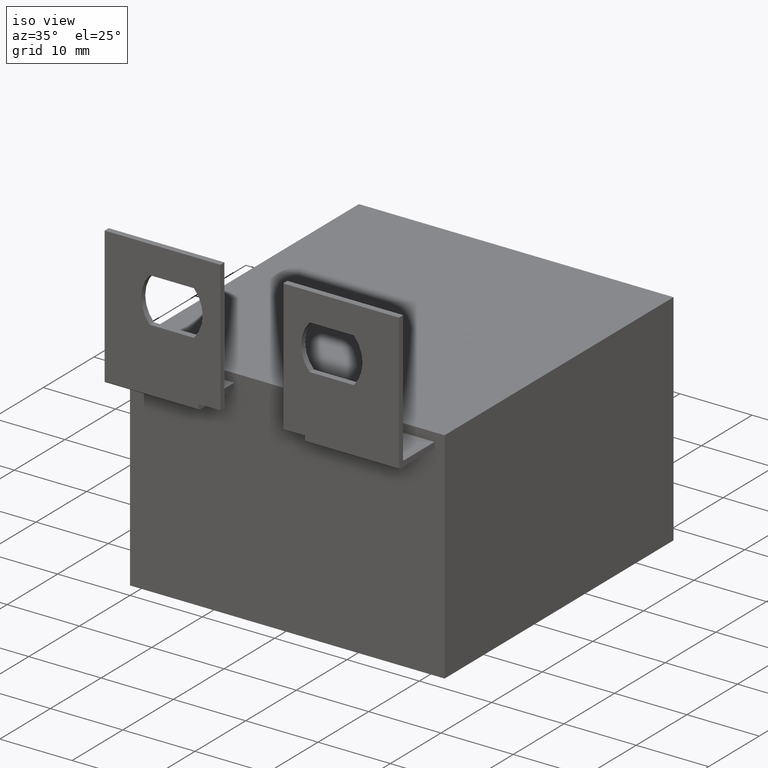
[diagram: clean part render]
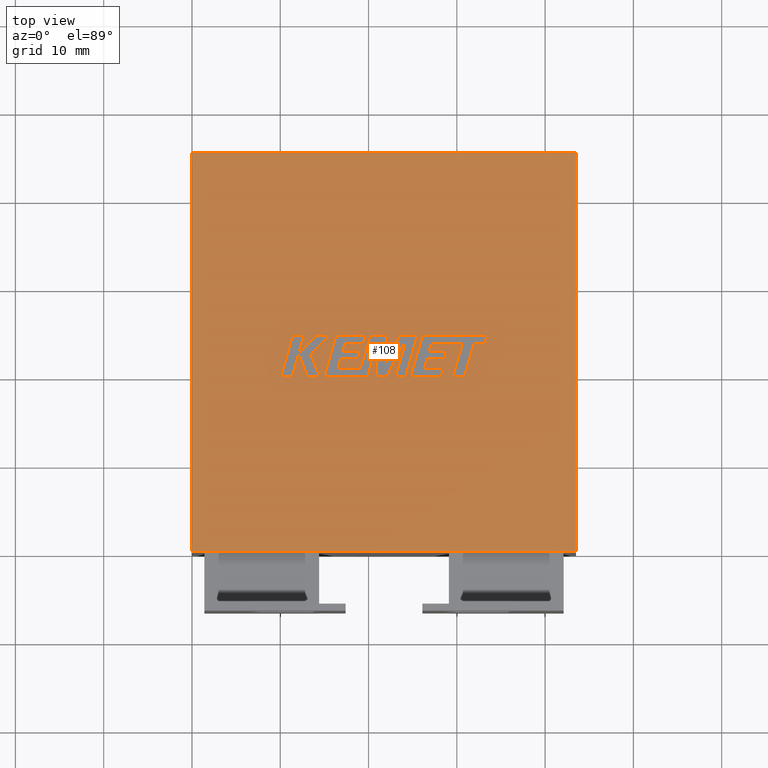
[diagram: tour spotlight — one face highlighted and labeled with its STEP entity id]
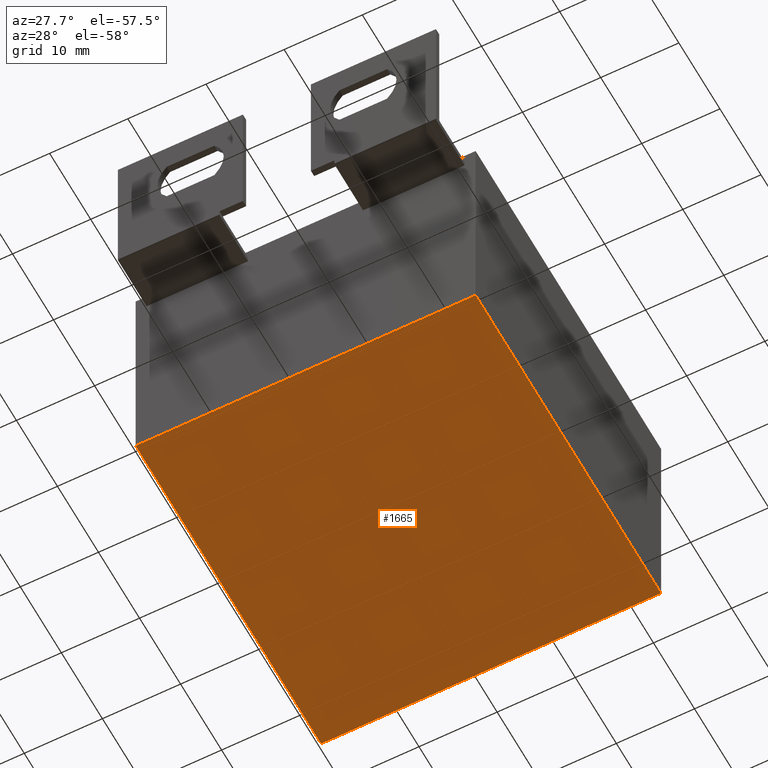
[diagram: tour spotlight — one face highlighted and labeled with its STEP entity id]
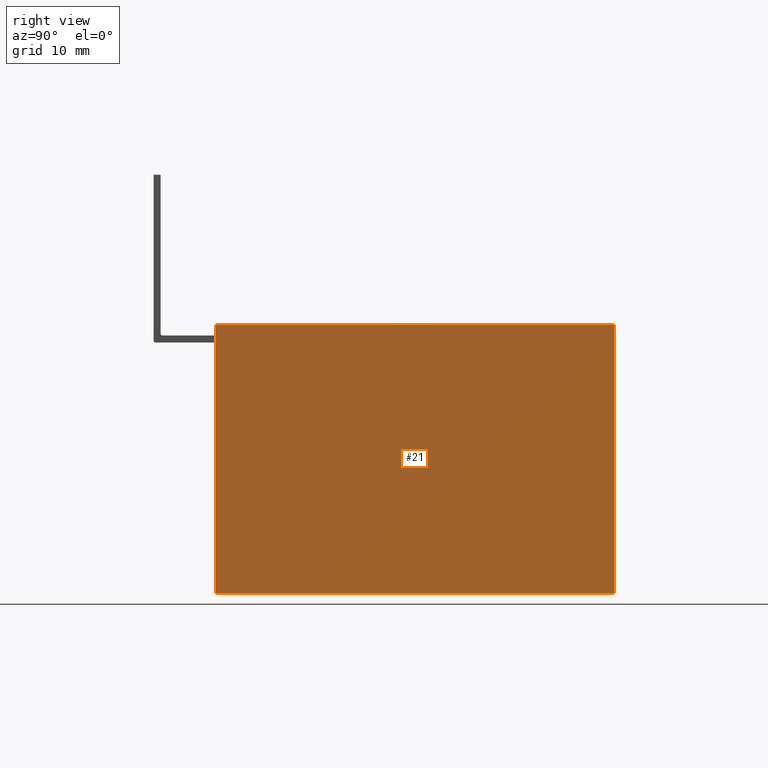
[diagram: tour spotlight — one face highlighted and labeled with its STEP entity id]
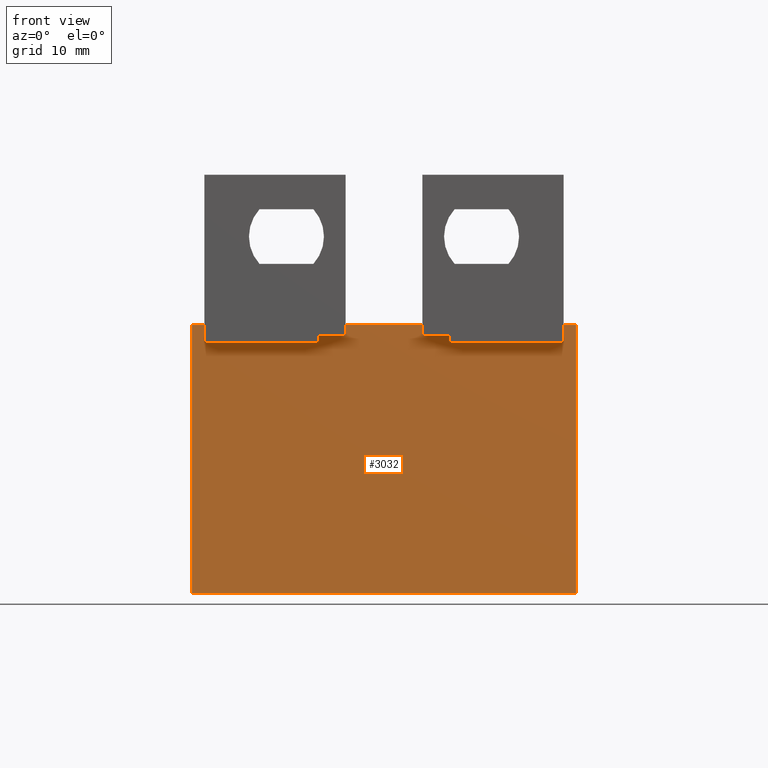
[diagram: tour spotlight — one face highlighted and labeled with its STEP entity id]
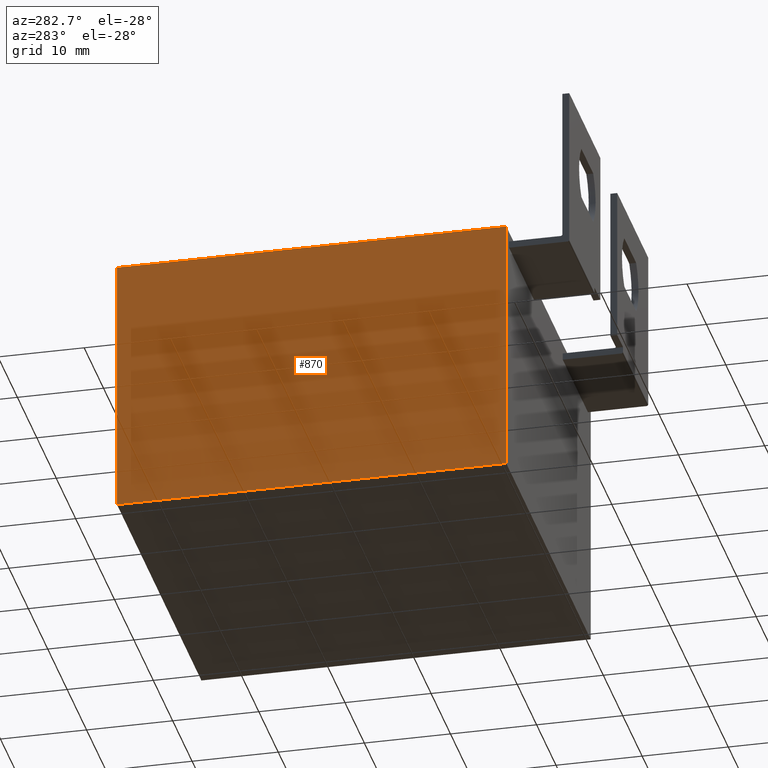
[diagram: tour spotlight — one face highlighted and labeled with its STEP entity id]
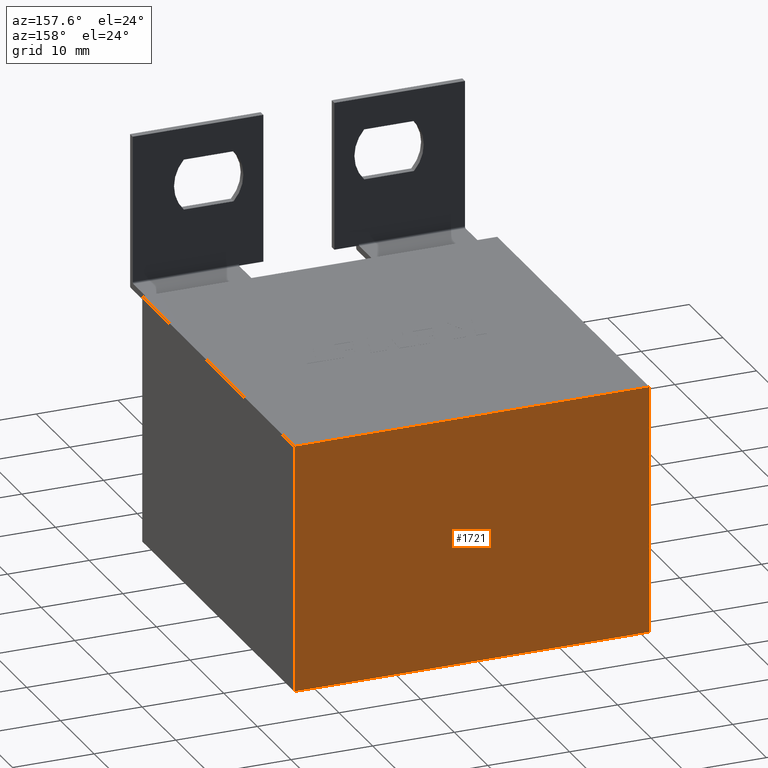
[diagram: tour spotlight — one face highlighted and labeled with its STEP entity id]
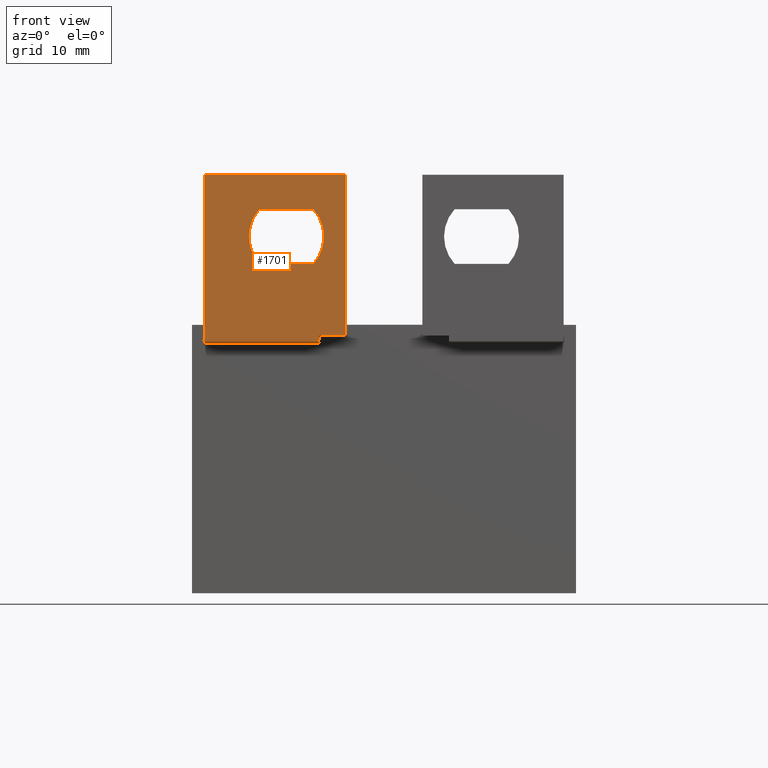
[diagram: tour spotlight — one face highlighted and labeled with its STEP entity id]
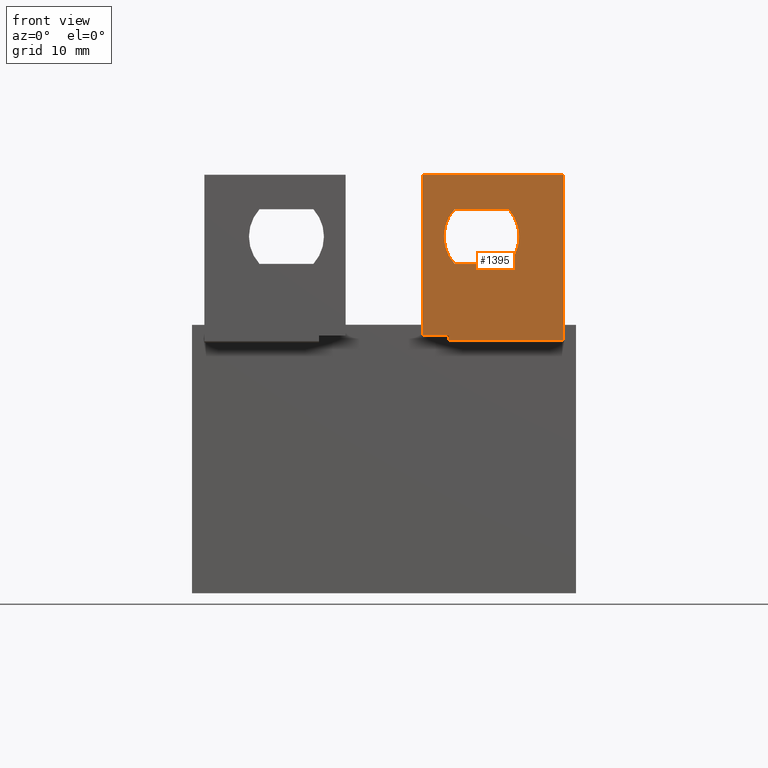
[diagram: tour spotlight — one face highlighted and labeled with its STEP entity id]
A machine part: a face-by-face anatomy tour. The part has 93 B-rep faces; the first image is the clean iso view, then the 8 largest visible faces are spotlighted one at a time (largest first), each with its STEP entity span.

Face 1 — top view, entity #108. In plain terms, the highlighted planar face has unit normal (0, 0, -1).
Definition (entity closure, byte-faithful):
#11 = VECTOR ( 'NONE', #2795, 1000.000000000000000 ) ;
#38 = DIRECTION ( 'NONE',  ( -1.000000000000000000, -0.0000000000000000000, -0.0000000000000000000 ) ) ;
#108 = ADVANCED_FACE ( 'NONE', ( #2443 ), #671, .F. ) ;
#158 = VERTEX_POINT ( 'NONE', #2806 ) ;
#172 = CARTESIAN_POINT ( 'NONE',  ( 0.0000000000000000000, 0.0000000000000000000, 30.39999999999999900 ) ) ;
#203 = EDGE_CURVE ( 'NONE', #158, #2235, #1085, .T. ) ;
#234 = EDGE_CURVE ( 'NONE', #2235, #873, #571, .T. ) ;
#571 = LINE ( 'NONE', #172, #3344 ) ;
#671 = PLANE ( 'NONE',  #2219 ) ;
#873 = VERTEX_POINT ( 'NONE', #2827 ) ;
#928 = CARTESIAN_POINT ( 'NONE',  ( 0.0000000000000000000, 0.0000000000000000000, 30.39999999999999900 ) ) ;
#976 = CARTESIAN_POINT ( 'NONE',  ( 43.50000000000000000, 0.0000000000000000000, 30.39999999999999900 ) ) ;
#1005 = ORIENTED_EDGE ( 'NONE', *, *, #1647, .T. ) ;
#1085 = LINE ( 'NONE', #928, #11 ) ;
#1181 = VECTOR ( 'NONE', #1843, 1000.000000000000000 ) ;
#1362 = CARTESIAN_POINT ( 'NONE',  ( 0.0000000000000000000, 45.20000000000000300, 30.39999999999999900 ) ) ;
#1489 = DIRECTION ( 'NONE',  ( 0.0000000000000000000, 0.0000000000000000000, -1.000000000000000000 ) ) ;
#1647 = EDGE_CURVE ( 'NONE', #2102, #158, #3310, .T. ) ;
#1722 = DIRECTION ( 'NONE',  ( -1.000000000000000000, 0.0000000000000000000, -0.0000000000000000000 ) ) ;
#1806 = ORIENTED_EDGE ( 'NONE', *, *, #234, .T. ) ;
#1838 = LINE ( 'NONE', #976, #1181 ) ;
#1843 = DIRECTION ( 'NONE',  ( 0.0000000000000000000, 1.000000000000000000, 0.0000000000000000000 ) ) ;
#1873 = EDGE_CURVE ( 'NONE', #873, #2102, #1838, .T. ) ;
#1966 = CARTESIAN_POINT ( 'NONE',  ( 0.0000000000000000000, 0.0000000000000000000, 30.39999999999999900 ) ) ;
#1977 = VECTOR ( 'NONE', #38, 1000.000000000000000 ) ;
#2102 = VERTEX_POINT ( 'NONE', #2980 ) ;
#2122 = EDGE_LOOP ( 'NONE', ( #2144, #1806, #2698, #1005 ) ) ;
#2144 = ORIENTED_EDGE ( 'NONE', *, *, #203, .T. ) ;
#2219 = AXIS2_PLACEMENT_3D ( 'NONE', #2226, #1489, #1722 ) ;
#2226 = CARTESIAN_POINT ( 'NONE',  ( 0.0000000000000000000, 0.0000000000000000000, 30.39999999999999900 ) ) ;
#2235 = VERTEX_POINT ( 'NONE', #1966 ) ;
#2443 = FACE_OUTER_BOUND ( 'NONE', #2122, .T. ) ;
#2698 = ORIENTED_EDGE ( 'NONE', *, *, #1873, .T. ) ;
#2795 = DIRECTION ( 'NONE',  ( -0.0000000000000000000, -1.000000000000000000, -0.0000000000000000000 ) ) ;
#2806 = CARTESIAN_POINT ( 'NONE',  ( 0.0000000000000000000, 45.20000000000000300, 30.39999999999999900 ) ) ;
#2827 = CARTESIAN_POINT ( 'NONE',  ( 43.50000000000000000, 0.0000000000000000000, 30.39999999999999900 ) ) ;
#2980 = CARTESIAN_POINT ( 'NONE',  ( 43.50000000000000000, 45.20000000000000300, 30.39999999999999900 ) ) ;
#3310 = LINE ( 'NONE', #1362, #1977 ) ;
#3344 = VECTOR ( 'NONE', #3399, 1000.000000000000000 ) ;
#3399 = DIRECTION ( 'NONE',  ( 1.000000000000000000, 0.0000000000000000000, 0.0000000000000000000 ) ) ;

Face 2 — auxiliary view, entity #1665. In plain terms, the highlighted planar face has unit normal (0, 0, -1).
Definition (entity closure, byte-faithful):
#15 = VECTOR ( 'NONE', #2313, 1000.000000000000000 ) ;
#124 = VERTEX_POINT ( 'NONE', #2023 ) ;
#137 = CARTESIAN_POINT ( 'NONE',  ( 43.50000000000000000, 45.20000000000000300, 0.0000000000000000000 ) ) ;
#143 = CARTESIAN_POINT ( 'NONE',  ( 0.0000000000000000000, 45.20000000000000300, 0.0000000000000000000 ) ) ;
#209 = EDGE_CURVE ( 'NONE', #2937, #124, #3439, .T. ) ;
#285 = EDGE_CURVE ( 'NONE', #1363, #2937, #739, .T. ) ;
#343 = DIRECTION ( 'NONE',  ( 1.000000000000000000, 0.0000000000000000000, 0.0000000000000000000 ) ) ;
#578 = PLANE ( 'NONE',  #853 ) ;
#633 = CARTESIAN_POINT ( 'NONE',  ( 0.0000000000000000000, 0.0000000000000000000, 0.0000000000000000000 ) ) ;
#739 = LINE ( 'NONE', #143, #15 ) ;
#787 = CARTESIAN_POINT ( 'NONE',  ( 43.50000000000000000, 0.0000000000000000000, 0.0000000000000000000 ) ) ;
#816 = DIRECTION ( 'NONE',  ( 0.0000000000000000000, 1.000000000000000000, 0.0000000000000000000 ) ) ;
#833 = VECTOR ( 'NONE', #343, 1000.000000000000000 ) ;
#853 = AXIS2_PLACEMENT_3D ( 'NONE', #2715, #1119, #2988 ) ;
#1119 = DIRECTION ( 'NONE',  ( 0.0000000000000000000, 0.0000000000000000000, -1.000000000000000000 ) ) ;
#1363 = VERTEX_POINT ( 'NONE', #137 ) ;
#1372 = ORIENTED_EDGE ( 'NONE', *, *, #285, .F. ) ;
#1456 = VECTOR ( 'NONE', #816, 1000.000000000000000 ) ;
#1471 = ORIENTED_EDGE ( 'NONE', *, *, #2210, .F. ) ;
#1665 = ADVANCED_FACE ( 'NONE', ( #3447 ), #578, .T. ) ;
#1790 = DIRECTION ( 'NONE',  ( -0.0000000000000000000, -1.000000000000000000, -0.0000000000000000000 ) ) ;
#1931 = ORIENTED_EDGE ( 'NONE', *, *, #2004, .F. ) ;
#2004 = EDGE_CURVE ( 'NONE', #2058, #1363, #2078, .T. ) ;
#2023 = CARTESIAN_POINT ( 'NONE',  ( 0.0000000000000000000, 0.0000000000000000000, 0.0000000000000000000 ) ) ;
#2058 = VERTEX_POINT ( 'NONE', #2679 ) ;
#2078 = LINE ( 'NONE', #787, #1456 ) ;
#2210 = EDGE_CURVE ( 'NONE', #124, #2058, #2410, .T. ) ;
#2234 = CARTESIAN_POINT ( 'NONE',  ( 0.0000000000000000000, 45.20000000000000300, 0.0000000000000000000 ) ) ;
#2311 = ORIENTED_EDGE ( 'NONE', *, *, #209, .F. ) ;
#2313 = DIRECTION ( 'NONE',  ( -1.000000000000000000, -0.0000000000000000000, -0.0000000000000000000 ) ) ;
#2410 = LINE ( 'NONE', #3281, #833 ) ;
#2679 = CARTESIAN_POINT ( 'NONE',  ( 43.50000000000000000, 0.0000000000000000000, 0.0000000000000000000 ) ) ;
#2715 = CARTESIAN_POINT ( 'NONE',  ( 0.0000000000000000000, 0.0000000000000000000, 0.0000000000000000000 ) ) ;
#2716 = VECTOR ( 'NONE', #1790, 1000.000000000000000 ) ;
#2937 = VERTEX_POINT ( 'NONE', #2234 ) ;
#2988 = DIRECTION ( 'NONE',  ( -1.000000000000000000, 0.0000000000000000000, -0.0000000000000000000 ) ) ;
#3134 = EDGE_LOOP ( 'NONE', ( #2311, #1372, #1931, #1471 ) ) ;
#3281 = CARTESIAN_POINT ( 'NONE',  ( 0.0000000000000000000, 0.0000000000000000000, 0.0000000000000000000 ) ) ;
#3439 = LINE ( 'NONE', #633, #2716 ) ;
#3447 = FACE_OUTER_BOUND ( 'NONE', #3134, .T. ) ;

Face 3 — right view, entity #21. In plain terms, the highlighted planar face has unit normal (-1, 0, 0).
Definition (entity closure, byte-faithful):
#21 = ADVANCED_FACE ( 'NONE', ( #995 ), #2212, .F. ) ;
#137 = CARTESIAN_POINT ( 'NONE',  ( 43.50000000000000000, 45.20000000000000300, 0.0000000000000000000 ) ) ;
#253 = ORIENTED_EDGE ( 'NONE', *, *, #431, .T. ) ;
#317 = EDGE_CURVE ( 'NONE', #2102, #1363, #3047, .T. ) ;
#431 = EDGE_CURVE ( 'NONE', #873, #2058, #2224, .T. ) ;
#465 = DIRECTION ( 'NONE',  ( -0.0000000000000000000, -0.0000000000000000000, -1.000000000000000000 ) ) ;
#787 = CARTESIAN_POINT ( 'NONE',  ( 43.50000000000000000, 0.0000000000000000000, 0.0000000000000000000 ) ) ;
#816 = DIRECTION ( 'NONE',  ( 0.0000000000000000000, 1.000000000000000000, 0.0000000000000000000 ) ) ;
#873 = VERTEX_POINT ( 'NONE', #2827 ) ;
#976 = CARTESIAN_POINT ( 'NONE',  ( 43.50000000000000000, 0.0000000000000000000, 30.39999999999999900 ) ) ;
#995 = FACE_OUTER_BOUND ( 'NONE', #1856, .T. ) ;
#1000 = CARTESIAN_POINT ( 'NONE',  ( 43.50000000000000000, 45.20000000000000300, 30.39999999999999900 ) ) ;
#1116 = VECTOR ( 'NONE', #2909, 1000.000000000000000 ) ;
#1181 = VECTOR ( 'NONE', #1843, 1000.000000000000000 ) ;
#1363 = VERTEX_POINT ( 'NONE', #137 ) ;
#1456 = VECTOR ( 'NONE', #816, 1000.000000000000000 ) ;
#1590 = ORIENTED_EDGE ( 'NONE', *, *, #2004, .T. ) ;
#1684 = DIRECTION ( 'NONE',  ( 0.0000000000000000000, 0.0000000000000000000, 1.000000000000000000 ) ) ;
#1817 = ORIENTED_EDGE ( 'NONE', *, *, #317, .F. ) ;
#1838 = LINE ( 'NONE', #976, #1181 ) ;
#1843 = DIRECTION ( 'NONE',  ( 0.0000000000000000000, 1.000000000000000000, 0.0000000000000000000 ) ) ;
#1856 = EDGE_LOOP ( 'NONE', ( #1590, #1817, #3023, #253 ) ) ;
#1873 = EDGE_CURVE ( 'NONE', #873, #2102, #1838, .T. ) ;
#2004 = EDGE_CURVE ( 'NONE', #2058, #1363, #2078, .T. ) ;
#2058 = VERTEX_POINT ( 'NONE', #2679 ) ;
#2078 = LINE ( 'NONE', #787, #1456 ) ;
#2102 = VERTEX_POINT ( 'NONE', #2980 ) ;
#2158 = VECTOR ( 'NONE', #465, 1000.000000000000000 ) ;
#2212 = PLANE ( 'NONE',  #2271 ) ;
#2224 = LINE ( 'NONE', #3195, #1116 ) ;
#2271 = AXIS2_PLACEMENT_3D ( 'NONE', #2394, #2953, #1684 ) ;
#2394 = CARTESIAN_POINT ( 'NONE',  ( 43.50000000000000000, 0.0000000000000000000, 30.39999999999999900 ) ) ;
#2679 = CARTESIAN_POINT ( 'NONE',  ( 43.50000000000000000, 0.0000000000000000000, 0.0000000000000000000 ) ) ;
#2827 = CARTESIAN_POINT ( 'NONE',  ( 43.50000000000000000, 0.0000000000000000000, 30.39999999999999900 ) ) ;
#2909 = DIRECTION ( 'NONE',  ( -0.0000000000000000000, -0.0000000000000000000, -1.000000000000000000 ) ) ;
#2953 = DIRECTION ( 'NONE',  ( -1.000000000000000000, 0.0000000000000000000, 0.0000000000000000000 ) ) ;
#2980 = CARTESIAN_POINT ( 'NONE',  ( 43.50000000000000000, 45.20000000000000300, 30.39999999999999900 ) ) ;
#3023 = ORIENTED_EDGE ( 'NONE', *, *, #1873, .F. ) ;
#3047 = LINE ( 'NONE', #1000, #2158 ) ;
#3195 = CARTESIAN_POINT ( 'NONE',  ( 43.50000000000000000, 0.0000000000000000000, 30.39999999999999900 ) ) ;

Face 4 — front view, entity #3032. In plain terms, the highlighted planar face has unit normal (0, 1, 0).
Definition (entity closure, byte-faithful):
#26 = VERTEX_POINT ( 'NONE', #1165 ) ;
#47 = DIRECTION ( 'NONE',  ( 0.0000000000000000000, 0.0000000000000000000, 1.000000000000000000 ) ) ;
#63 = EDGE_CURVE ( 'NONE', #26, #777, #3152, .T. ) ;
#79 = DIRECTION ( 'NONE',  ( -1.000000000000000000, -0.0000000000000000000, -2.668805347656626700E-016 ) ) ;
#124 = VERTEX_POINT ( 'NONE', #2023 ) ;
#154 = EDGE_LOOP ( 'NONE', ( #1333, #2433, #389, #731 ) ) ;
#172 = CARTESIAN_POINT ( 'NONE',  ( 0.0000000000000000000, 0.0000000000000000000, 30.39999999999999900 ) ) ;
#194 = EDGE_CURVE ( 'NONE', #1640, #610, #1535, .T. ) ;
#234 = EDGE_CURVE ( 'NONE', #2235, #873, #571, .T. ) ;
#267 = EDGE_LOOP ( 'NONE', ( #470, #779, #2011, #593 ) ) ;
#327 = VECTOR ( 'NONE', #694, 1000.000000000000000 ) ;
#343 = DIRECTION ( 'NONE',  ( 1.000000000000000000, 0.0000000000000000000, 0.0000000000000000000 ) ) ;
#366 = LINE ( 'NONE', #537, #3254 ) ;
#389 = ORIENTED_EDGE ( 'NONE', *, *, #1128, .T. ) ;
#431 = EDGE_CURVE ( 'NONE', #873, #2058, #2224, .T. ) ;
#451 = FACE_BOUND ( 'NONE', #267, .T. ) ;
#470 = ORIENTED_EDGE ( 'NONE', *, *, #194, .F. ) ;
#537 = CARTESIAN_POINT ( 'NONE',  ( 1.399999999999999900, 0.0000000000000000000, 28.39999999999999900 ) ) ;
#571 = LINE ( 'NONE', #172, #3344 ) ;
#593 = ORIENTED_EDGE ( 'NONE', *, *, #2562, .F. ) ;
#610 = VERTEX_POINT ( 'NONE', #2974 ) ;
#644 = CARTESIAN_POINT ( 'NONE',  ( 1.399999999999999900, 0.0000000000000000000, 28.39999999999999900 ) ) ;
#694 = DIRECTION ( 'NONE',  ( -2.710505431213766000E-016, 0.0000000000000000000, -1.000000000000000000 ) ) ;
#731 = ORIENTED_EDGE ( 'NONE', *, *, #2124, .T. ) ;
#777 = VERTEX_POINT ( 'NONE', #3114 ) ;
#779 = ORIENTED_EDGE ( 'NONE', *, *, #2908, .F. ) ;
#782 = DIRECTION ( 'NONE',  ( 1.000000000000000000, 0.0000000000000000000, -2.668805347656626700E-016 ) ) ;
#829 = VECTOR ( 'NONE', #2268, 1000.000000000000000 ) ;
#832 = CARTESIAN_POINT ( 'NONE',  ( 42.10000000000000100, 0.0000000000000000000, 28.39999999999999900 ) ) ;
#833 = VECTOR ( 'NONE', #343, 1000.000000000000000 ) ;
#838 = EDGE_LOOP ( 'NONE', ( #1719, #3136, #1626, #1636 ) ) ;
#849 = VECTOR ( 'NONE', #2973, 1000.000000000000000 ) ;
#873 = VERTEX_POINT ( 'NONE', #2827 ) ;
#879 = CARTESIAN_POINT ( 'NONE',  ( 0.0000000000000000000, 0.0000000000000000000, 30.39999999999999900 ) ) ;
#930 = CARTESIAN_POINT ( 'NONE',  ( 14.40000000000000000, 0.0000000000000000000, 29.19999999999999900 ) ) ;
#1070 = CARTESIAN_POINT ( 'NONE',  ( 1.399999999999999700, 0.0000000000000000000, 29.19999999999999600 ) ) ;
#1114 = CARTESIAN_POINT ( 'NONE',  ( 14.40000000000000000, 0.0000000000000000000, 28.39999999999999500 ) ) ;
#1116 = VECTOR ( 'NONE', #2909, 1000.000000000000000 ) ;
#1128 = EDGE_CURVE ( 'NONE', #1437, #2523, #3413, .T. ) ;
#1165 = CARTESIAN_POINT ( 'NONE',  ( 29.09999999999999800, 0.0000000000000000000, 29.19999999999999900 ) ) ;
#1223 = LINE ( 'NONE', #3306, #2804 ) ;
#1333 = ORIENTED_EDGE ( 'NONE', *, *, #63, .T. ) ;
#1416 = DIRECTION ( 'NONE',  ( -0.0000000000000000000, -0.0000000000000000000, -1.000000000000000000 ) ) ;
#1437 = VERTEX_POINT ( 'NONE', #2361 ) ;
#1535 = LINE ( 'NONE', #644, #829 ) ;
#1539 = LINE ( 'NONE', #879, #2162 ) ;
#1626 = ORIENTED_EDGE ( 'NONE', *, *, #234, .F. ) ;
#1636 = ORIENTED_EDGE ( 'NONE', *, *, #2193, .T. ) ;
#1640 = VERTEX_POINT ( 'NONE', #1070 ) ;
#1698 = CARTESIAN_POINT ( 'NONE',  ( 14.40000000000000000, 0.0000000000000000000, 28.39999999999999500 ) ) ;
#1719 = ORIENTED_EDGE ( 'NONE', *, *, #2210, .T. ) ;
#1798 = FACE_OUTER_BOUND ( 'NONE', #838, .T. ) ;
#1812 = CARTESIAN_POINT ( 'NONE',  ( 0.0000000000000000000, 0.0000000000000000000, 30.39999999999999900 ) ) ;
#1841 = LINE ( 'NONE', #2035, #327 ) ;
#1875 = VECTOR ( 'NONE', #79, 1000.000000000000000 ) ;
#1966 = CARTESIAN_POINT ( 'NONE',  ( 0.0000000000000000000, 0.0000000000000000000, 30.39999999999999900 ) ) ;
#2011 = ORIENTED_EDGE ( 'NONE', *, *, #2153, .F. ) ;
#2023 = CARTESIAN_POINT ( 'NONE',  ( 0.0000000000000000000, 0.0000000000000000000, 0.0000000000000000000 ) ) ;
#2035 = CARTESIAN_POINT ( 'NONE',  ( 42.10000000000000100, 0.0000000000000000000, 28.39999999999999900 ) ) ;
#2058 = VERTEX_POINT ( 'NONE', #2679 ) ;
#2091 = DIRECTION ( 'NONE',  ( 0.0000000000000000000, -0.0000000000000000000, 1.000000000000000000 ) ) ;
#2124 = EDGE_CURVE ( 'NONE', #2523, #26, #1223, .T. ) ;
#2128 = CARTESIAN_POINT ( 'NONE',  ( 29.09999999999999800, 0.0000000000000000000, 28.39999999999999500 ) ) ;
#2153 = EDGE_CURVE ( 'NONE', #2657, #2398, #3214, .T. ) ;
#2162 = VECTOR ( 'NONE', #1416, 1000.000000000000000 ) ;
#2193 = EDGE_CURVE ( 'NONE', #2235, #124, #1539, .T. ) ;
#2210 = EDGE_CURVE ( 'NONE', #124, #2058, #2410, .T. ) ;
#2224 = LINE ( 'NONE', #3195, #1116 ) ;
#2235 = VERTEX_POINT ( 'NONE', #1966 ) ;
#2242 = VECTOR ( 'NONE', #3011, 1000.000000000000000 ) ;
#2268 = DIRECTION ( 'NONE',  ( 2.710505431213766000E-016, -0.0000000000000000000, -1.000000000000000000 ) ) ;
#2315 = FACE_BOUND ( 'NONE', #154, .T. ) ;
#2361 = CARTESIAN_POINT ( 'NONE',  ( 42.10000000000000100, 0.0000000000000000000, 28.39999999999999900 ) ) ;
#2398 = VERTEX_POINT ( 'NONE', #930 ) ;
#2410 = LINE ( 'NONE', #3281, #833 ) ;
#2429 = EDGE_CURVE ( 'NONE', #777, #1437, #1841, .T. ) ;
#2433 = ORIENTED_EDGE ( 'NONE', *, *, #2429, .T. ) ;
#2523 = VERTEX_POINT ( 'NONE', #2128 ) ;
#2562 = EDGE_CURVE ( 'NONE', #610, #2657, #366, .T. ) ;
#2636 = DIRECTION ( 'NONE',  ( 0.0000000000000000000, 1.000000000000000000, 0.0000000000000000000 ) ) ;
#2657 = VERTEX_POINT ( 'NONE', #1114 ) ;
#2679 = CARTESIAN_POINT ( 'NONE',  ( 43.50000000000000000, 0.0000000000000000000, 0.0000000000000000000 ) ) ;
#2703 = CARTESIAN_POINT ( 'NONE',  ( 42.10000000000000100, 0.0000000000000000000, 29.19999999999999600 ) ) ;
#2718 = LINE ( 'NONE', #3007, #1875 ) ;
#2804 = VECTOR ( 'NONE', #47, 1000.000000000000000 ) ;
#2827 = CARTESIAN_POINT ( 'NONE',  ( 43.50000000000000000, 0.0000000000000000000, 30.39999999999999900 ) ) ;
#2908 = EDGE_CURVE ( 'NONE', #2398, #1640, #2718, .T. ) ;
#2909 = DIRECTION ( 'NONE',  ( -0.0000000000000000000, -0.0000000000000000000, -1.000000000000000000 ) ) ;
#2961 = DIRECTION ( 'NONE',  ( 1.000000000000000000, -0.0000000000000000000, -2.668805347656626700E-016 ) ) ;
#2973 = DIRECTION ( 'NONE',  ( -1.000000000000000000, 0.0000000000000000000, -2.668805347656626700E-016 ) ) ;
#2974 = CARTESIAN_POINT ( 'NONE',  ( 1.399999999999999900, 0.0000000000000000000, 28.39999999999999900 ) ) ;
#3007 = CARTESIAN_POINT ( 'NONE',  ( 1.399999999999999700, 0.0000000000000000000, 29.19999999999999600 ) ) ;
#3011 = DIRECTION ( 'NONE',  ( 0.0000000000000000000, 0.0000000000000000000, 1.000000000000000000 ) ) ;
#3032 = ADVANCED_FACE ( 'NONE', ( #2315, #1798, #451 ), #3423, .F. ) ;
#3068 = VECTOR ( 'NONE', #2961, 1000.000000000000000 ) ;
#3114 = CARTESIAN_POINT ( 'NONE',  ( 42.10000000000000100, 0.0000000000000000000, 29.19999999999999600 ) ) ;
#3136 = ORIENTED_EDGE ( 'NONE', *, *, #431, .F. ) ;
#3152 = LINE ( 'NONE', #2703, #3068 ) ;
#3195 = CARTESIAN_POINT ( 'NONE',  ( 43.50000000000000000, 0.0000000000000000000, 30.39999999999999900 ) ) ;
#3214 = LINE ( 'NONE', #1698, #2242 ) ;
#3254 = VECTOR ( 'NONE', #782, 1000.000000000000000 ) ;
#3281 = CARTESIAN_POINT ( 'NONE',  ( 0.0000000000000000000, 0.0000000000000000000, 0.0000000000000000000 ) ) ;
#3306 = CARTESIAN_POINT ( 'NONE',  ( 29.09999999999999800, 0.0000000000000000000, 28.39999999999999500 ) ) ;
#3344 = VECTOR ( 'NONE', #3399, 1000.000000000000000 ) ;
#3389 = AXIS2_PLACEMENT_3D ( 'NONE', #1812, #2636, #2091 ) ;
#3399 = DIRECTION ( 'NONE',  ( 1.000000000000000000, 0.0000000000000000000, 0.0000000000000000000 ) ) ;
#3413 = LINE ( 'NONE', #832, #849 ) ;
#3423 = PLANE ( 'NONE',  #3389 ) ;

Face 5 — auxiliary view, entity #870. In plain terms, the highlighted planar face has unit normal (1, 0, 0).
Definition (entity closure, byte-faithful):
#11 = VECTOR ( 'NONE', #2795, 1000.000000000000000 ) ;
#124 = VERTEX_POINT ( 'NONE', #2023 ) ;
#158 = VERTEX_POINT ( 'NONE', #2806 ) ;
#169 = VECTOR ( 'NONE', #2022, 1000.000000000000000 ) ;
#203 = EDGE_CURVE ( 'NONE', #158, #2235, #1085, .T. ) ;
#209 = EDGE_CURVE ( 'NONE', #2937, #124, #3439, .T. ) ;
#340 = ORIENTED_EDGE ( 'NONE', *, *, #2193, .F. ) ;
#633 = CARTESIAN_POINT ( 'NONE',  ( 0.0000000000000000000, 0.0000000000000000000, 0.0000000000000000000 ) ) ;
#813 = ORIENTED_EDGE ( 'NONE', *, *, #1052, .T. ) ;
#870 = ADVANCED_FACE ( 'NONE', ( #2141 ), #2558, .F. ) ;
#879 = CARTESIAN_POINT ( 'NONE',  ( 0.0000000000000000000, 0.0000000000000000000, 30.39999999999999900 ) ) ;
#928 = CARTESIAN_POINT ( 'NONE',  ( 0.0000000000000000000, 0.0000000000000000000, 30.39999999999999900 ) ) ;
#1052 = EDGE_CURVE ( 'NONE', #158, #2937, #1597, .T. ) ;
#1085 = LINE ( 'NONE', #928, #11 ) ;
#1096 = EDGE_LOOP ( 'NONE', ( #2155, #340, #2131, #813 ) ) ;
#1207 = CARTESIAN_POINT ( 'NONE',  ( 0.0000000000000000000, 45.20000000000000300, 30.39999999999999900 ) ) ;
#1351 = AXIS2_PLACEMENT_3D ( 'NONE', #2547, #3103, #2801 ) ;
#1416 = DIRECTION ( 'NONE',  ( -0.0000000000000000000, -0.0000000000000000000, -1.000000000000000000 ) ) ;
#1539 = LINE ( 'NONE', #879, #2162 ) ;
#1597 = LINE ( 'NONE', #1207, #169 ) ;
#1790 = DIRECTION ( 'NONE',  ( -0.0000000000000000000, -1.000000000000000000, -0.0000000000000000000 ) ) ;
#1966 = CARTESIAN_POINT ( 'NONE',  ( 0.0000000000000000000, 0.0000000000000000000, 30.39999999999999900 ) ) ;
#2022 = DIRECTION ( 'NONE',  ( -0.0000000000000000000, -0.0000000000000000000, -1.000000000000000000 ) ) ;
#2023 = CARTESIAN_POINT ( 'NONE',  ( 0.0000000000000000000, 0.0000000000000000000, 0.0000000000000000000 ) ) ;
#2131 = ORIENTED_EDGE ( 'NONE', *, *, #203, .F. ) ;
#2141 = FACE_OUTER_BOUND ( 'NONE', #1096, .T. ) ;
#2155 = ORIENTED_EDGE ( 'NONE', *, *, #209, .T. ) ;
#2162 = VECTOR ( 'NONE', #1416, 1000.000000000000000 ) ;
#2193 = EDGE_CURVE ( 'NONE', #2235, #124, #1539, .T. ) ;
#2234 = CARTESIAN_POINT ( 'NONE',  ( 0.0000000000000000000, 45.20000000000000300, 0.0000000000000000000 ) ) ;
#2235 = VERTEX_POINT ( 'NONE', #1966 ) ;
#2547 = CARTESIAN_POINT ( 'NONE',  ( 0.0000000000000000000, 0.0000000000000000000, 30.39999999999999900 ) ) ;
#2558 = PLANE ( 'NONE',  #1351 ) ;
#2716 = VECTOR ( 'NONE', #1790, 1000.000000000000000 ) ;
#2795 = DIRECTION ( 'NONE',  ( -0.0000000000000000000, -1.000000000000000000, -0.0000000000000000000 ) ) ;
#2801 = DIRECTION ( 'NONE',  ( 0.0000000000000000000, 0.0000000000000000000, -1.000000000000000000 ) ) ;
#2806 = CARTESIAN_POINT ( 'NONE',  ( 0.0000000000000000000, 45.20000000000000300, 30.39999999999999900 ) ) ;
#2937 = VERTEX_POINT ( 'NONE', #2234 ) ;
#3103 = DIRECTION ( 'NONE',  ( 1.000000000000000000, 0.0000000000000000000, 0.0000000000000000000 ) ) ;
#3439 = LINE ( 'NONE', #633, #2716 ) ;

Face 6 — auxiliary view, entity #1721. In plain terms, the highlighted planar face has unit normal (0, -1, 0).
Definition (entity closure, byte-faithful):
#15 = VECTOR ( 'NONE', #2313, 1000.000000000000000 ) ;
#38 = DIRECTION ( 'NONE',  ( -1.000000000000000000, -0.0000000000000000000, -0.0000000000000000000 ) ) ;
#104 = DIRECTION ( 'NONE',  ( 0.0000000000000000000, -1.000000000000000000, 0.0000000000000000000 ) ) ;
#137 = CARTESIAN_POINT ( 'NONE',  ( 43.50000000000000000, 45.20000000000000300, 0.0000000000000000000 ) ) ;
#142 = ORIENTED_EDGE ( 'NONE', *, *, #285, .T. ) ;
#143 = CARTESIAN_POINT ( 'NONE',  ( 0.0000000000000000000, 45.20000000000000300, 0.0000000000000000000 ) ) ;
#158 = VERTEX_POINT ( 'NONE', #2806 ) ;
#169 = VECTOR ( 'NONE', #2022, 1000.000000000000000 ) ;
#192 = EDGE_LOOP ( 'NONE', ( #142, #673, #1135, #2821 ) ) ;
#285 = EDGE_CURVE ( 'NONE', #1363, #2937, #739, .T. ) ;
#317 = EDGE_CURVE ( 'NONE', #2102, #1363, #3047, .T. ) ;
#465 = DIRECTION ( 'NONE',  ( -0.0000000000000000000, -0.0000000000000000000, -1.000000000000000000 ) ) ;
#673 = ORIENTED_EDGE ( 'NONE', *, *, #1052, .F. ) ;
#739 = LINE ( 'NONE', #143, #15 ) ;
#931 = FACE_OUTER_BOUND ( 'NONE', #192, .T. ) ;
#957 = CARTESIAN_POINT ( 'NONE',  ( 0.0000000000000000000, 45.20000000000000300, 30.39999999999999900 ) ) ;
#1000 = CARTESIAN_POINT ( 'NONE',  ( 43.50000000000000000, 45.20000000000000300, 30.39999999999999900 ) ) ;
#1052 = EDGE_CURVE ( 'NONE', #158, #2937, #1597, .T. ) ;
#1135 = ORIENTED_EDGE ( 'NONE', *, *, #1647, .F. ) ;
#1207 = CARTESIAN_POINT ( 'NONE',  ( 0.0000000000000000000, 45.20000000000000300, 30.39999999999999900 ) ) ;
#1362 = CARTESIAN_POINT ( 'NONE',  ( 0.0000000000000000000, 45.20000000000000300, 30.39999999999999900 ) ) ;
#1363 = VERTEX_POINT ( 'NONE', #137 ) ;
#1597 = LINE ( 'NONE', #1207, #169 ) ;
#1647 = EDGE_CURVE ( 'NONE', #2102, #158, #3310, .T. ) ;
#1721 = ADVANCED_FACE ( 'NONE', ( #931 ), #2753, .F. ) ;
#1977 = VECTOR ( 'NONE', #38, 1000.000000000000000 ) ;
#2022 = DIRECTION ( 'NONE',  ( -0.0000000000000000000, -0.0000000000000000000, -1.000000000000000000 ) ) ;
#2102 = VERTEX_POINT ( 'NONE', #2980 ) ;
#2158 = VECTOR ( 'NONE', #465, 1000.000000000000000 ) ;
#2234 = CARTESIAN_POINT ( 'NONE',  ( 0.0000000000000000000, 45.20000000000000300, 0.0000000000000000000 ) ) ;
#2313 = DIRECTION ( 'NONE',  ( -1.000000000000000000, -0.0000000000000000000, -0.0000000000000000000 ) ) ;
#2504 = DIRECTION ( 'NONE',  ( 0.0000000000000000000, -0.0000000000000000000, -1.000000000000000000 ) ) ;
#2648 = AXIS2_PLACEMENT_3D ( 'NONE', #957, #104, #2504 ) ;
#2753 = PLANE ( 'NONE',  #2648 ) ;
#2806 = CARTESIAN_POINT ( 'NONE',  ( 0.0000000000000000000, 45.20000000000000300, 30.39999999999999900 ) ) ;
#2821 = ORIENTED_EDGE ( 'NONE', *, *, #317, .T. ) ;
#2937 = VERTEX_POINT ( 'NONE', #2234 ) ;
#2980 = CARTESIAN_POINT ( 'NONE',  ( 43.50000000000000000, 45.20000000000000300, 30.39999999999999900 ) ) ;
#3047 = LINE ( 'NONE', #1000, #2158 ) ;
#3310 = LINE ( 'NONE', #1362, #1977 ) ;

Face 7 — front view, entity #1701. In plain terms, the highlighted planar face has unit normal (0, 1, -0).
Definition (entity closure, byte-faithful):
#73 = CARTESIAN_POINT ( 'NONE',  ( 0.0000000000000000000, -7.000000000000000000, 0.0000000000000000000 ) ) ;
#223 = VECTOR ( 'NONE', #2166, 1000.000000000000000 ) ;
#233 = FACE_BOUND ( 'NONE', #3386, .T. ) ;
#345 = LINE ( 'NONE', #2791, #3322 ) ;
#472 = EDGE_CURVE ( 'NONE', #650, #717, #2788, .T. ) ;
#524 = EDGE_CURVE ( 'NONE', #3270, #1700, #1649, .T. ) ;
#548 = ORIENTED_EDGE ( 'NONE', *, *, #722, .T. ) ;
#574 = LINE ( 'NONE', #1674, #1803 ) ;
#650 = VERTEX_POINT ( 'NONE', #1935 ) ;
#651 = ORIENTED_EDGE ( 'NONE', *, *, #704, .F. ) ;
#672 = CARTESIAN_POINT ( 'NONE',  ( 1.399999999999992100, -7.000000000000000000, 47.39999999999999900 ) ) ;
#704 = EDGE_CURVE ( 'NONE', #2710, #717, #1683, .T. ) ;
#717 = VERTEX_POINT ( 'NONE', #3274 ) ;
#722 = EDGE_CURVE ( 'NONE', #1700, #1851, #345, .T. ) ;
#744 = VERTEX_POINT ( 'NONE', #896 ) ;
#776 = AXIS2_PLACEMENT_3D ( 'NONE', #73, #1394, #3244 ) ;
#809 = CARTESIAN_POINT ( 'NONE',  ( 1.399999999999999900, -7.000000000000000000, 28.39999999999999900 ) ) ;
#863 = CARTESIAN_POINT ( 'NONE',  ( 17.39999999999999100, -7.000000000000000000, 47.39999999999999900 ) ) ;
#896 = CARTESIAN_POINT ( 'NONE',  ( 1.399999999999999900, -7.000000000000000000, 28.59999999999999800 ) ) ;
#902 = DIRECTION ( 'NONE',  ( 1.000000000000000000, -0.0000000000000000000, -2.668805347656626700E-016 ) ) ;
#915 = LINE ( 'NONE', #2015, #2358 ) ;
#977 = DIRECTION ( 'NONE',  ( 1.000000000000000000, -0.0000000000000000000, 0.0000000000000000000 ) ) ;
#1014 = ORIENTED_EDGE ( 'NONE', *, *, #2186, .T. ) ;
#1044 = LINE ( 'NONE', #3070, #2876 ) ;
#1071 = ORIENTED_EDGE ( 'NONE', *, *, #472, .T. ) ;
#1129 = PLANE ( 'NONE',  #776 ) ;
#1140 = CIRCLE ( 'NONE', #2573, 4.604166666666666100 ) ;
#1147 = DIRECTION ( 'NONE',  ( -0.0000000000000000000, -0.0000000000000000000, -1.000000000000000000 ) ) ;
#1164 = VERTEX_POINT ( 'NONE', #3063 ) ;
#1172 = CARTESIAN_POINT ( 'NONE',  ( 17.39999999999999100, -7.000000000000000000, 47.39999999999999900 ) ) ;
#1183 = CARTESIAN_POINT ( 'NONE',  ( 1.399999999999992100, -7.000000000000000000, 47.39999999999999900 ) ) ;
#1228 = CARTESIAN_POINT ( 'NONE',  ( 14.40000000000000000, -7.000000000000000000, 28.59999999999999400 ) ) ;
#1394 = DIRECTION ( 'NONE',  ( 0.0000000000000000000, 1.000000000000000000, -0.0000000000000000000 ) ) ;
#1649 = CIRCLE ( 'NONE', #3417, 4.604166666666673200 ) ;
#1659 = CARTESIAN_POINT ( 'NONE',  ( 13.75000000000000000, -6.999999999999999100, 43.50000000000000000 ) ) ;
#1664 = CARTESIAN_POINT ( 'NONE',  ( 13.75000000000000000, -6.999999999999999100, 37.29999999999999700 ) ) ;
#1674 = CARTESIAN_POINT ( 'NONE',  ( 7.632783294297951200E-015, -7.000000000000000000, 28.59999999999999800 ) ) ;
#1683 = LINE ( 'NONE', #1172, #2303 ) ;
#1700 = VERTEX_POINT ( 'NONE', #1664 ) ;
#1701 = ADVANCED_FACE ( 'NONE', ( #233, #2935 ), #1129, .F. ) ;
#1725 = DIRECTION ( 'NONE',  ( 0.0000000000000000000, 1.000000000000000000, -0.0000000000000000000 ) ) ;
#1803 = VECTOR ( 'NONE', #902, 1000.000000000000000 ) ;
#1836 = EDGE_CURVE ( 'NONE', #1851, #1164, #1140, .T. ) ;
#1851 = VERTEX_POINT ( 'NONE', #2528 ) ;
#1900 = VERTEX_POINT ( 'NONE', #1183 ) ;
#1935 = CARTESIAN_POINT ( 'NONE',  ( 14.40000000000000000, -7.000000000000000000, 29.19999999999999600 ) ) ;
#1972 = DIRECTION ( 'NONE',  ( -1.000000000000000000, 0.0000000000000000000, 0.0000000000000000000 ) ) ;
#2015 = CARTESIAN_POINT ( 'NONE',  ( 14.40000000000000000, -7.000000000000000000, 28.39999999999999500 ) ) ;
#2148 = CARTESIAN_POINT ( 'NONE',  ( 10.34583333333332400, -6.999999999999999100, 40.39999999999999900 ) ) ;
#2166 = DIRECTION ( 'NONE',  ( 2.710505431213766000E-016, -0.0000000000000000000, -1.000000000000000000 ) ) ;
#2186 = EDGE_CURVE ( 'NONE', #744, #3352, #574, .T. ) ;
#2257 = CARTESIAN_POINT ( 'NONE',  ( 11.05416666666667400, -6.999999999999999100, 40.39999999999999900 ) ) ;
#2303 = VECTOR ( 'NONE', #1147, 1000.000000000000000 ) ;
#2306 = EDGE_CURVE ( 'NONE', #1900, #2710, #3172, .T. ) ;
#2356 = ORIENTED_EDGE ( 'NONE', *, *, #2306, .F. ) ;
#2358 = VECTOR ( 'NONE', #3346, 1000.000000000000000 ) ;
#2376 = CARTESIAN_POINT ( 'NONE',  ( 1.399999999999992100, -7.000000000000000000, 29.19999999999999600 ) ) ;
#2388 = ORIENTED_EDGE ( 'NONE', *, *, #1836, .T. ) ;
#2520 = VECTOR ( 'NONE', #3170, 1000.000000000000000 ) ;
#2528 = CARTESIAN_POINT ( 'NONE',  ( 7.650000000000000400, -7.000000000000000000, 37.29999999999999700 ) ) ;
#2539 = DIRECTION ( 'NONE',  ( 0.0000000000000000000, 0.0000000000000000000, 1.000000000000000000 ) ) ;
#2573 = AXIS2_PLACEMENT_3D ( 'NONE', #2257, #1725, #2539 ) ;
#2607 = ORIENTED_EDGE ( 'NONE', *, *, #3211, .T. ) ;
#2710 = VERTEX_POINT ( 'NONE', #863 ) ;
#2788 = LINE ( 'NONE', #2376, #2520 ) ;
#2791 = CARTESIAN_POINT ( 'NONE',  ( 0.0000000000000000000, -7.000000000000000000, 37.29999999999999700 ) ) ;
#2831 = ORIENTED_EDGE ( 'NONE', *, *, #3338, .T. ) ;
#2876 = VECTOR ( 'NONE', #977, 1000.000000000000000 ) ;
#2902 = ORIENTED_EDGE ( 'NONE', *, *, #3422, .T. ) ;
#2935 = FACE_OUTER_BOUND ( 'NONE', #3440, .T. ) ;
#2972 = VECTOR ( 'NONE', #3082, 1000.000000000000000 ) ;
#3063 = CARTESIAN_POINT ( 'NONE',  ( 7.650000000000001200, -6.999999999999999100, 43.50000000000000000 ) ) ;
#3070 = CARTESIAN_POINT ( 'NONE',  ( 0.0000000000000000000, -7.000000000000000000, 43.50000000000000000 ) ) ;
#3082 = DIRECTION ( 'NONE',  ( 1.000000000000000000, 0.0000000000000000000, 0.0000000000000000000 ) ) ;
#3170 = DIRECTION ( 'NONE',  ( 1.000000000000000000, 0.0000000000000000000, 0.0000000000000000000 ) ) ;
#3172 = LINE ( 'NONE', #672, #2972 ) ;
#3206 = LINE ( 'NONE', #809, #223 ) ;
#3211 = EDGE_CURVE ( 'NONE', #1900, #744, #3206, .T. ) ;
#3215 = DIRECTION ( 'NONE',  ( 0.0000000000000000000, 0.0000000000000000000, 1.000000000000000000 ) ) ;
#3226 = DIRECTION ( 'NONE',  ( 0.0000000000000000000, 1.000000000000000000, -0.0000000000000000000 ) ) ;
#3244 = DIRECTION ( 'NONE',  ( 0.0000000000000000000, 0.0000000000000000000, 1.000000000000000000 ) ) ;
#3270 = VERTEX_POINT ( 'NONE', #1659 ) ;
#3274 = CARTESIAN_POINT ( 'NONE',  ( 17.39999999999999100, -7.000000000000000000, 29.19999999999999600 ) ) ;
#3322 = VECTOR ( 'NONE', #1972, 1000.000000000000000 ) ;
#3338 = EDGE_CURVE ( 'NONE', #3352, #650, #915, .T. ) ;
#3346 = DIRECTION ( 'NONE',  ( 0.0000000000000000000, 0.0000000000000000000, 1.000000000000000000 ) ) ;
#3352 = VERTEX_POINT ( 'NONE', #1228 ) ;
#3386 = EDGE_LOOP ( 'NONE', ( #2902, #3449, #548, #2388 ) ) ;
#3417 = AXIS2_PLACEMENT_3D ( 'NONE', #2148, #3226, #3215 ) ;
#3422 = EDGE_CURVE ( 'NONE', #1164, #3270, #1044, .T. ) ;
#3440 = EDGE_LOOP ( 'NONE', ( #2607, #1014, #2831, #1071, #651, #2356 ) ) ;
#3449 = ORIENTED_EDGE ( 'NONE', *, *, #524, .T. ) ;

Face 8 — front view, entity #1395. In plain terms, the highlighted planar face has unit normal (0, 1, 0).
Definition (entity closure, byte-faithful):
#6 = AXIS2_PLACEMENT_3D ( 'NONE', #2264, #3340, #985 ) ;
#67 = LINE ( 'NONE', #3308, #2324 ) ;
#92 = ORIENTED_EDGE ( 'NONE', *, *, #1443, .F. ) ;
#152 = EDGE_CURVE ( 'NONE', #1631, #961, #3332, .T. ) ;
#295 = VERTEX_POINT ( 'NONE', #475 ) ;
#388 = DIRECTION ( 'NONE',  ( 0.0000000000000000000, 0.0000000000000000000, 1.000000000000000000 ) ) ;
#469 = FACE_BOUND ( 'NONE', #3140, .T. ) ;
#475 = CARTESIAN_POINT ( 'NONE',  ( 29.09999999999999800, -7.000000000000000000, 29.19999999999999900 ) ) ;
#579 = ORIENTED_EDGE ( 'NONE', *, *, #3455, .F. ) ;
#643 = CARTESIAN_POINT ( 'NONE',  ( 26.10000000000000500, -7.000000000000000000, 47.39999999999999900 ) ) ;
#648 = LINE ( 'NONE', #1503, #1122 ) ;
#751 = VERTEX_POINT ( 'NONE', #1949 ) ;
#754 = CARTESIAN_POINT ( 'NONE',  ( 43.50000000000000000, -7.000000000000000000, 0.0000000000000000000 ) ) ;
#824 = VERTEX_POINT ( 'NONE', #1757 ) ;
#894 = ORIENTED_EDGE ( 'NONE', *, *, #1469, .T. ) ;
#961 = VERTEX_POINT ( 'NONE', #2632 ) ;
#985 = DIRECTION ( 'NONE',  ( 0.0000000000000000000, 0.0000000000000000000, 1.000000000000000000 ) ) ;
#1015 = LINE ( 'NONE', #1605, #3349 ) ;
#1097 = LINE ( 'NONE', #1284, #2938 ) ;
#1113 = ORIENTED_EDGE ( 'NONE', *, *, #2969, .F. ) ;
#1122 = VECTOR ( 'NONE', #388, 1000.000000000000000 ) ;
#1138 = DIRECTION ( 'NONE',  ( 1.000000000000000000, 0.0000000000000000000, 0.0000000000000000000 ) ) ;
#1152 = CARTESIAN_POINT ( 'NONE',  ( 43.50000000000000000, -7.000000000000000000, 37.29999999999999700 ) ) ;
#1179 = CIRCLE ( 'NONE', #6, 4.604166666666673200 ) ;
#1208 = DIRECTION ( 'NONE',  ( -2.710505431213766000E-016, 0.0000000000000000000, -1.000000000000000000 ) ) ;
#1284 = CARTESIAN_POINT ( 'NONE',  ( 42.10000000000000100, -7.000000000000000000, 28.59999999999999800 ) ) ;
#1301 = LINE ( 'NONE', #643, #2584 ) ;
#1354 = AXIS2_PLACEMENT_3D ( 'NONE', #2960, #2150, #3480 ) ;
#1395 = ADVANCED_FACE ( 'NONE', ( #1589, #469 ), #1772, .F. ) ;
#1443 = EDGE_CURVE ( 'NONE', #2975, #824, #2813, .T. ) ;
#1445 = CARTESIAN_POINT ( 'NONE',  ( 42.10000000000000100, -7.000000000000000000, 28.39999999999999900 ) ) ;
#1447 = ORIENTED_EDGE ( 'NONE', *, *, #1816, .T. ) ;
#1454 = DIRECTION ( 'NONE',  ( -1.000000000000000000, 0.0000000000000000000, 0.0000000000000000000 ) ) ;
#1469 = EDGE_CURVE ( 'NONE', #1717, #961, #1097, .T. ) ;
#1503 = CARTESIAN_POINT ( 'NONE',  ( 29.09999999999999800, -7.000000000000000000, 28.39999999999999500 ) ) ;
#1589 = FACE_OUTER_BOUND ( 'NONE', #2936, .T. ) ;
#1591 = CARTESIAN_POINT ( 'NONE',  ( 29.75000000000000000, -6.999999999999999100, 37.29999999999999700 ) ) ;
#1605 = CARTESIAN_POINT ( 'NONE',  ( 42.10000000000000900, -7.000000000000000000, 29.19999999999999600 ) ) ;
#1609 = ORIENTED_EDGE ( 'NONE', *, *, #2553, .F. ) ;
#1631 = VERTEX_POINT ( 'NONE', #3201 ) ;
#1641 = CARTESIAN_POINT ( 'NONE',  ( 35.84999999999999400, -6.999999999999999100, 37.29999999999999700 ) ) ;
#1717 = VERTEX_POINT ( 'NONE', #2463 ) ;
#1757 = CARTESIAN_POINT ( 'NONE',  ( 29.75000000000000000, -6.999999999999999100, 43.50000000000000000 ) ) ;
#1772 = PLANE ( 'NONE',  #3086 ) ;
#1816 = EDGE_CURVE ( 'NONE', #1631, #2331, #67, .T. ) ;
#1949 = CARTESIAN_POINT ( 'NONE',  ( 26.10000000000000500, -7.000000000000000000, 29.19999999999999600 ) ) ;
#1975 = DIRECTION ( 'NONE',  ( -0.0000000000000000000, -0.0000000000000000000, -1.000000000000000000 ) ) ;
#2067 = DIRECTION ( 'NONE',  ( 0.0000000000000000000, 0.0000000000000000000, 1.000000000000000000 ) ) ;
#2133 = VECTOR ( 'NONE', #2903, 1000.000000000000000 ) ;
#2143 = EDGE_CURVE ( 'NONE', #2559, #2765, #3442, .T. ) ;
#2150 = DIRECTION ( 'NONE',  ( -0.0000000000000000000, -1.000000000000000000, -0.0000000000000000000 ) ) ;
#2264 = CARTESIAN_POINT ( 'NONE',  ( 33.15416666666666900, -6.999999999999999100, 40.39999999999999900 ) ) ;
#2278 = CARTESIAN_POINT ( 'NONE',  ( 26.10000000000000500, -7.000000000000000000, 47.39999999999999900 ) ) ;
#2319 = DIRECTION ( 'NONE',  ( 0.0000000000000000000, 1.000000000000000000, 0.0000000000000000000 ) ) ;
#2324 = VECTOR ( 'NONE', #1454, 1000.000000000000000 ) ;
#2331 = VERTEX_POINT ( 'NONE', #2278 ) ;
#2463 = CARTESIAN_POINT ( 'NONE',  ( 29.09999999999999800, -7.000000000000000000, 28.59999999999999400 ) ) ;
#2553 = EDGE_CURVE ( 'NONE', #295, #751, #1015, .T. ) ;
#2559 = VERTEX_POINT ( 'NONE', #1591 ) ;
#2577 = ORIENTED_EDGE ( 'NONE', *, *, #152, .F. ) ;
#2584 = VECTOR ( 'NONE', #1975, 1000.000000000000000 ) ;
#2632 = CARTESIAN_POINT ( 'NONE',  ( 42.10000000000000100, -7.000000000000000000, 28.59999999999999800 ) ) ;
#2693 = EDGE_CURVE ( 'NONE', #2765, #2975, #3094, .T. ) ;
#2765 = VERTEX_POINT ( 'NONE', #1641 ) ;
#2813 = LINE ( 'NONE', #3155, #2133 ) ;
#2825 = ORIENTED_EDGE ( 'NONE', *, *, #2874, .T. ) ;
#2874 = EDGE_CURVE ( 'NONE', #2331, #751, #1301, .T. ) ;
#2903 = DIRECTION ( 'NONE',  ( -1.000000000000000000, 0.0000000000000000000, 0.0000000000000000000 ) ) ;
#2936 = EDGE_LOOP ( 'NONE', ( #579, #894, #2577, #1447, #2825, #1609 ) ) ;
#2938 = VECTOR ( 'NONE', #3431, 1000.000000000000000 ) ;
#2960 = CARTESIAN_POINT ( 'NONE',  ( 32.44583333333332600, -6.999999999999999100, 40.39999999999999900 ) ) ;
#2969 = EDGE_CURVE ( 'NONE', #824, #2559, #1179, .T. ) ;
#2975 = VERTEX_POINT ( 'NONE', #3327 ) ;
#2990 = VECTOR ( 'NONE', #1208, 1000.000000000000000 ) ;
#3010 = ORIENTED_EDGE ( 'NONE', *, *, #2143, .F. ) ;
#3086 = AXIS2_PLACEMENT_3D ( 'NONE', #754, #2319, #2067 ) ;
#3094 = CIRCLE ( 'NONE', #1354, 4.604166666666666100 ) ;
#3140 = EDGE_LOOP ( 'NONE', ( #1113, #92, #3320, #3010 ) ) ;
#3155 = CARTESIAN_POINT ( 'NONE',  ( 43.50000000000000000, -7.000000000000000000, 43.50000000000000000 ) ) ;
#3201 = CARTESIAN_POINT ( 'NONE',  ( 42.10000000000000900, -7.000000000000000000, 47.39999999999999900 ) ) ;
#3253 = VECTOR ( 'NONE', #1138, 1000.000000000000000 ) ;
#3308 = CARTESIAN_POINT ( 'NONE',  ( 42.10000000000000900, -7.000000000000000000, 47.39999999999999900 ) ) ;
#3320 = ORIENTED_EDGE ( 'NONE', *, *, #2693, .F. ) ;
#3327 = CARTESIAN_POINT ( 'NONE',  ( 35.84999999999999400, -7.000000000000000000, 43.50000000000000000 ) ) ;
#3332 = LINE ( 'NONE', #1445, #2990 ) ;
#3340 = DIRECTION ( 'NONE',  ( -0.0000000000000000000, -1.000000000000000000, -0.0000000000000000000 ) ) ;
#3349 = VECTOR ( 'NONE', #3466, 1000.000000000000000 ) ;
#3431 = DIRECTION ( 'NONE',  ( 1.000000000000000000, -0.0000000000000000000, 2.668805347656626700E-016 ) ) ;
#3442 = LINE ( 'NONE', #1152, #3253 ) ;
#3455 = EDGE_CURVE ( 'NONE', #1717, #295, #648, .T. ) ;
#3466 = DIRECTION ( 'NONE',  ( -1.000000000000000000, 0.0000000000000000000, 0.0000000000000000000 ) ) ;
#3480 = DIRECTION ( 'NONE',  ( 0.0000000000000000000, 0.0000000000000000000, 1.000000000000000000 ) ) ;